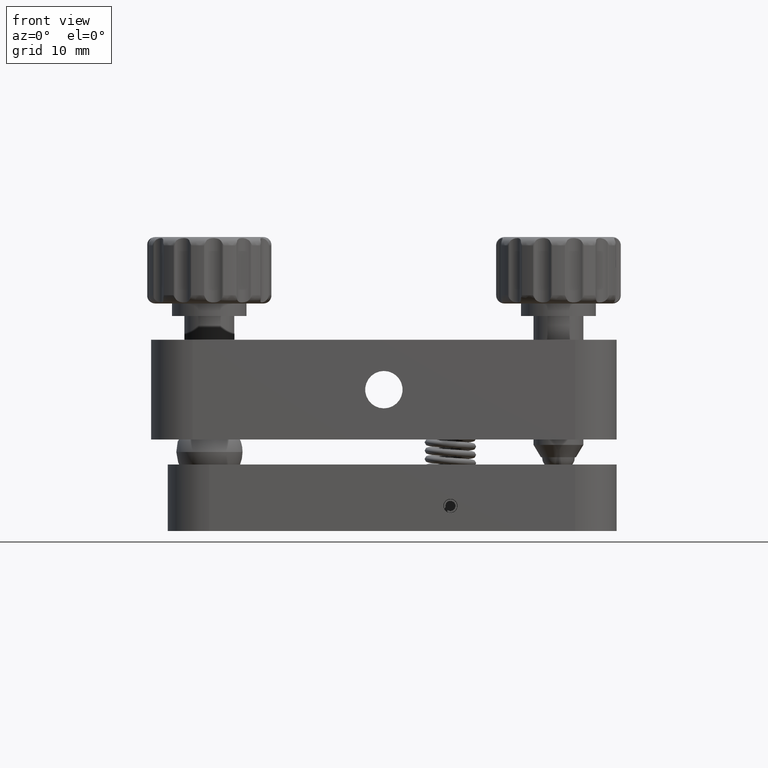
[diagram: clean part render]
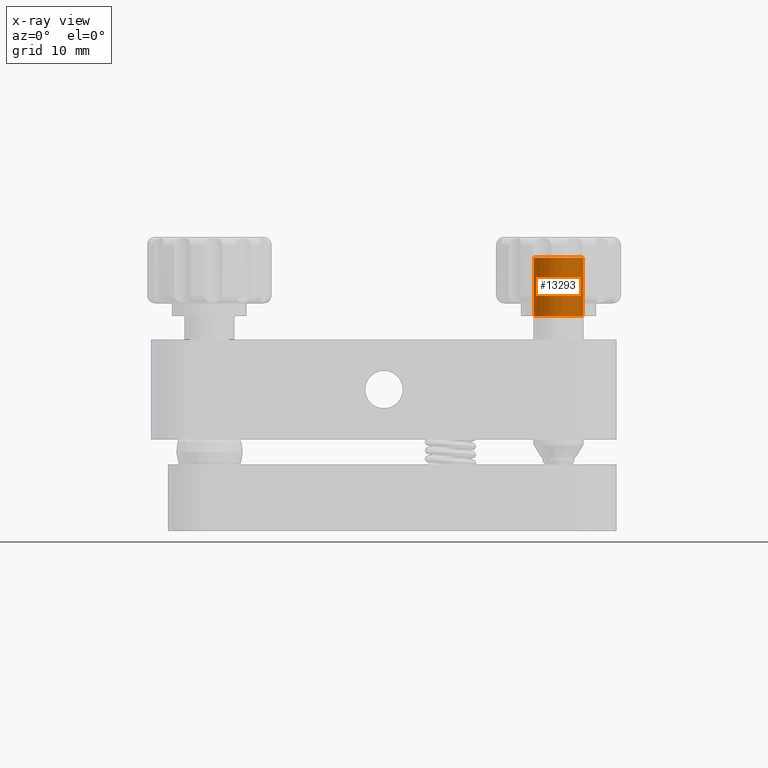
[diagram: x-ray — body ghosted, one internal face saturated and labeled with its STEP entity id]
A machine part, front view, then the same camera in x-ray: the body is ghosted and one INTERNAL B-rep face — a face not visible from any outside direction — is saturated and labeled: STEP entity #13293.
In plain terms, the highlighted cylindrical surface (edge-blend (fillet) strip) has radius 2.95 mm, axis along (-0, 0, -1).
Its self-contained STEP definition (entity closure, byte-faithful):
#347 = EDGE_CURVE ( 'NONE', #18724, #12904, #9461, .T. ) ;
#1493 = DIRECTION ( 'NONE',  ( -1.000000000000000000, 0.0000000000000000000, 0.0000000000000000000 ) ) ;
#2255 = VERTEX_POINT ( 'NONE', #18442 ) ;
#2909 = CARTESIAN_POINT ( 'NONE',  ( 18.04999999999999400, -21.00000000000000400, 15.86413291343758500 ) ) ;
#3532 = CIRCLE ( 'NONE', #14351, 2.949999999999998000 ) ;
#4354 = DIRECTION ( 'NONE',  ( -0.0000000000000000000, 0.0000000000000000000, -1.000000000000000000 ) ) ;
#4851 = ORIENTED_EDGE ( 'NONE', *, *, #8874, .T. ) ;
#5706 = EDGE_LOOP ( 'NONE', ( #20374, #4851, #11306, #15153 ) ) ;
#5849 = LINE ( 'NONE', #7474, #15044 ) ;
#6316 = DIRECTION ( 'NONE',  ( -1.000000000000000000, 0.0000000000000000000, 0.0000000000000000000 ) ) ;
#7474 = CARTESIAN_POINT ( 'NONE',  ( 23.94999999999998900, -21.00000000000000400, 15.86413291343758500 ) ) ;
#7659 = DIRECTION ( 'NONE',  ( 0.0000000000000000000, 0.0000000000000000000, -1.000000000000000000 ) ) ;
#8419 = EDGE_CURVE ( 'NONE', #2255, #18724, #12293, .T. ) ;
#8729 = VECTOR ( 'NONE', #4354, 1000.000000000000000 ) ;
#8738 = AXIS2_PLACEMENT_3D ( 'NONE', #12917, #15983, #17585 ) ;
#8874 = EDGE_CURVE ( 'NONE', #2255, #17405, #5849, .T. ) ;
#9013 = CARTESIAN_POINT ( 'NONE',  ( 18.04999999999999400, -21.00000000000000400, 15.86413291343758500 ) ) ;
#9461 = LINE ( 'NONE', #9013, #8729 ) ;
#10560 = FACE_OUTER_BOUND ( 'NONE', #5706, .T. ) ;
#10847 = CARTESIAN_POINT ( 'NONE',  ( 23.94999999999999200, -21.00000000000000400, 8.864132913437588400 ) ) ;
#10995 = CARTESIAN_POINT ( 'NONE',  ( 20.99999999999998900, -21.00000000000000400, 15.86413291343758500 ) ) ;
#11277 = CARTESIAN_POINT ( 'NONE',  ( 18.04999999999999400, -21.00000000000000400, 8.864132913437588400 ) ) ;
#11306 = ORIENTED_EDGE ( 'NONE', *, *, #15100, .T. ) ;
#12293 = CIRCLE ( 'NONE', #8738, 2.949999999999998000 ) ;
#12454 = DIRECTION ( 'NONE',  ( -0.0000000000000000000, 0.0000000000000000000, -1.000000000000000000 ) ) ;
#12738 = DIRECTION ( 'NONE',  ( -0.0000000000000000000, 0.0000000000000000000, -1.000000000000000000 ) ) ;
#12904 = VERTEX_POINT ( 'NONE', #11277 ) ;
#12917 = CARTESIAN_POINT ( 'NONE',  ( 20.99999999999998900, -21.00000000000000400, 15.86413291343758500 ) ) ;
#13293 = ADVANCED_FACE ( 'NONE', ( #10560 ), #15539, .F. ) ;
#14351 = AXIS2_PLACEMENT_3D ( 'NONE', #18778, #7659, #6316 ) ;
#15044 = VECTOR ( 'NONE', #12454, 1000.000000000000000 ) ;
#15100 = EDGE_CURVE ( 'NONE', #17405, #12904, #3532, .T. ) ;
#15153 = ORIENTED_EDGE ( 'NONE', *, *, #347, .F. ) ;
#15539 = CYLINDRICAL_SURFACE ( 'NONE', #18863, 2.949999999999998000 ) ;
#15983 = DIRECTION ( 'NONE',  ( 0.0000000000000000000, 0.0000000000000000000, -1.000000000000000000 ) ) ;
#17405 = VERTEX_POINT ( 'NONE', #10847 ) ;
#17585 = DIRECTION ( 'NONE',  ( -1.000000000000000000, 0.0000000000000000000, 0.0000000000000000000 ) ) ;
#18442 = CARTESIAN_POINT ( 'NONE',  ( 23.94999999999999200, -21.00000000000000400, 15.86413291343758500 ) ) ;
#18724 = VERTEX_POINT ( 'NONE', #2909 ) ;
#18778 = CARTESIAN_POINT ( 'NONE',  ( 20.99999999999998900, -21.00000000000000400, 8.864132913437588400 ) ) ;
#18863 = AXIS2_PLACEMENT_3D ( 'NONE', #10995, #12738, #1493 ) ;
#20374 = ORIENTED_EDGE ( 'NONE', *, *, #8419, .F. ) ;